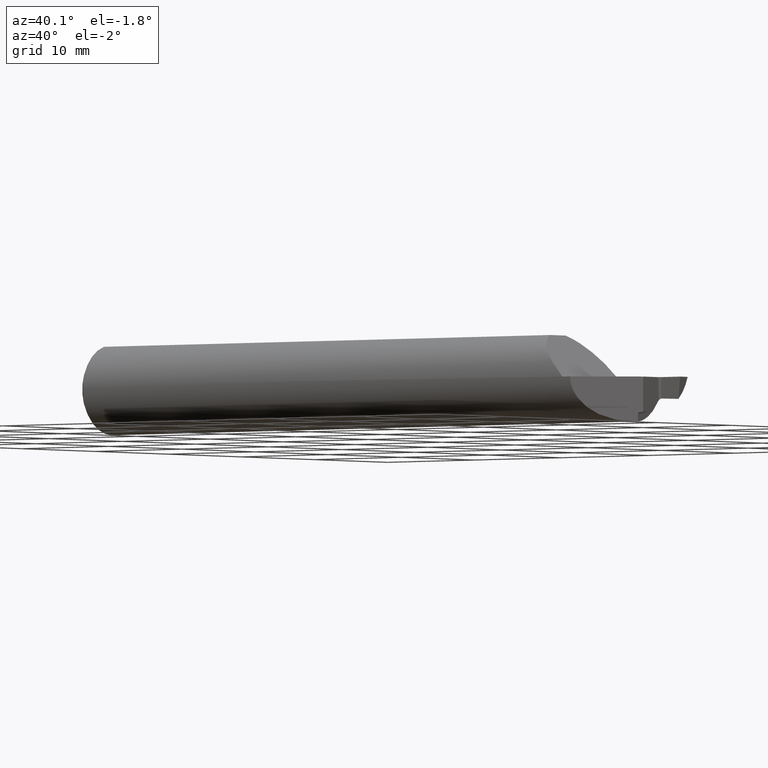
[diagram: clean part render]
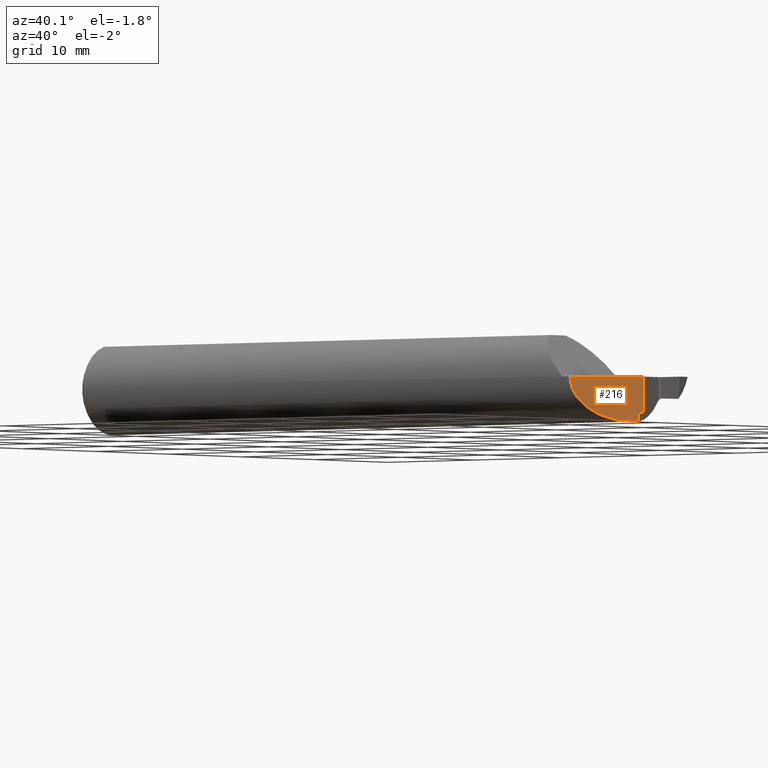
[diagram: same view with one face highlighted and labeled with its STEP entity id]
A machine part, auxiliary view. The second image highlights one B-rep face of the part: STEP entity #216.
In plain terms, the highlighted planar face has unit normal (-0.7071, 0.7071, 0).
Its self-contained STEP definition (entity closure, byte-faithful):
#3 = CARTESIAN_POINT ( 'NONE',  ( 2.405000000000000249, 0.02390000000000001845, 0.000000000000000000 ) ) ;
#11 = CARTESIAN_POINT ( 'NONE',  ( 2.405000000000000249, 0.02390000000000001845, -0.1560999999999999888 ) ) ;
#13 = LINE ( 'NONE', #579, #650 ) ;
#15 = CARTESIAN_POINT ( 'NONE',  ( 2.397423808061100114, 0.01632380806110001956, -0.1242544045886763149 ) ) ;
#19 = VECTOR ( 'NONE', #241, 39.37007874015748143 ) ;
#40 = ORIENTED_EDGE ( 'NONE', *, *, #162, .T. ) ;
#42 = ORIENTED_EDGE ( 'NONE', *, *, #692, .T. ) ;
#43 = CARTESIAN_POINT ( 'NONE',  ( 2.224999999999999645, -0.1560999999999999888, 0.000000000000000000 ) ) ;
#93 = EDGE_CURVE ( 'NONE', #606, #224, #378, .T. ) ;
#103 = CARTESIAN_POINT ( 'NONE',  ( 2.393284134125179818, 0.01218413412517886131, -0.1266357782406275778 ) ) ;
#110 = CARTESIAN_POINT ( 'NONE',  ( 2.399956862387794487, 0.01885686238779464216, -0.1240053609185062800 ) ) ;
#129 = DIRECTION ( 'NONE',  ( -0.000000000000000000, -0.000000000000000000, 1.000000000000000000 ) ) ;
#136 = CARTESIAN_POINT ( 'NONE',  ( 2.392508837550267220, 0.01140883755026705221, -0.1296700073607929826 ) ) ;
#142 = DIRECTION ( 'NONE',  ( 0.000000000000000000, 0.000000000000000000, -1.000000000000000000 ) ) ;
#148 = DIRECTION ( 'NONE',  ( -0.7071067811865486830, -0.7071067811865463515, 0.000000000000000000 ) ) ;
#155 = EDGE_CURVE ( 'NONE', #627, #796, #336, .T. ) ;
#162 = EDGE_CURVE ( 'NONE', #812, #606, #13, .T. ) ;
#186 = CARTESIAN_POINT ( 'NONE',  ( 2.405000000000000249, 0.02390000000000001845, -0.1233210395421390215 ) ) ;
#216 = ADVANCED_FACE ( 'NONE', ( #647 ), #453, .F. ) ;
#224 = VERTEX_POINT ( 'NONE', #457 ) ;
#227 = ORIENTED_EDGE ( 'NONE', *, *, #814, .T. ) ;
#233 = AXIS2_PLACEMENT_3D ( 'NONE', #11, #720, #148 ) ;
#241 = DIRECTION ( 'NONE',  ( -0.7071067811865486830, -0.7071067811865464625, 0.000000000000000000 ) ) ;
#243 = CARTESIAN_POINT ( 'NONE',  ( 2.397423808061100114, 0.01632380806110001956, -0.1242544045886763149 ) ) ;
#277 = CARTESIAN_POINT ( 'NONE',  ( 2.397423808061100114, 0.01632380806110001956, -0.1242544045886763149 ) ) ;
#336 = LINE ( 'NONE', #643, #560 ) ;
#349 = ORIENTED_EDGE ( 'NONE', *, *, #155, .F. ) ;
#361 = CARTESIAN_POINT ( 'NONE',  ( 2.295931644576337138, -0.08516835542366303635, -0.1627599630562642785 ) ) ;
#378 = LINE ( 'NONE', #639, #19 ) ;
#390 = EDGE_CURVE ( 'NONE', #796, #224, #516, .T. ) ;
#422 = CARTESIAN_POINT ( 'NONE',  ( 2.392508837550267220, 0.01140883755026705221, -0.1556825244712829459 ) ) ;
#447 = CARTESIAN_POINT ( 'NONE',  ( 2.402482786173128826, 0.02138278617312873442, -0.1236941743764464335 ) ) ;
#453 = PLANE ( 'NONE',  #233 ) ;
#457 = CARTESIAN_POINT ( 'NONE',  ( 2.224999999999999645, -0.1560999999999999888, 0.000000000000000000 ) ) ;
#494 = CARTESIAN_POINT ( 'NONE',  ( 2.392508837550267220, 0.01140883755026705221, -0.1296700073607929826 ) ) ;
#495 = ORIENTED_EDGE ( 'NONE', *, *, #390, .F. ) ;
#507 = ORIENTED_EDGE ( 'NONE', *, *, #93, .T. ) ;
#516 =( BOUNDED_CURVE ( )  B_SPLINE_CURVE ( 3, ( #620, #361, #677, #43 ),
 .UNSPECIFIED., .F., .T. ) 
 B_SPLINE_CURVE_WITH_KNOTS ( ( 4, 4 ),
 ( 4.639237032386853699, 6.283185307179586232 ),
 .UNSPECIFIED. ) 
 CURVE ( )  GEOMETRIC_REPRESENTATION_ITEM ( )  RATIONAL_B_SPLINE_CURVE ( ( 1.000000000000000000, 0.7871843310122479398, 0.7871843310122479398, 1.000000000000000000 ) ) 
 REPRESENTATION_ITEM ( '' )  );
#560 = VECTOR ( 'NONE', #142, 39.37007874015748143 ) ;
#579 = CARTESIAN_POINT ( 'NONE',  ( 2.405000000000000249, 0.02390000000000001845, -0.1560999999999999888 ) ) ;
#604 =( BOUNDED_CURVE ( )  B_SPLINE_CURVE ( 3, ( #243, #110, #447, #186 ),
 .UNSPECIFIED., .F., .F. ) 
 B_SPLINE_CURVE_WITH_KNOTS ( ( 4, 4 ),
 ( 1.670543601574468795, 1.720556221768346550 ),
 .UNSPECIFIED. ) 
 CURVE ( )  GEOMETRIC_REPRESENTATION_ITEM ( )  RATIONAL_B_SPLINE_CURVE ( ( 1.000000000000000000, 0.9997915723465391480, 0.9997915723465391480, 1.000000000000000000 ) ) 
 REPRESENTATION_ITEM ( '' )  );
#606 = VERTEX_POINT ( 'NONE', #3 ) ;
#618 = CARTESIAN_POINT ( 'NONE',  ( 2.396287397230223437, 0.01518739723022257890, -0.1243661337060088246 ) ) ;
#620 = CARTESIAN_POINT ( 'NONE',  ( 2.392508837550267220, 0.01140883755026705221, -0.1556825244712829459 ) ) ;
#627 = VERTEX_POINT ( 'NONE', #136 ) ;
#639 = CARTESIAN_POINT ( 'NONE',  ( 2.405000000000000249, 0.02390000000000001845, 0.000000000000000000 ) ) ;
#643 = CARTESIAN_POINT ( 'NONE',  ( 2.392508837550267220, 0.01140883755026705221, 0.02500000000000001180 ) ) ;
#647 = FACE_OUTER_BOUND ( 'NONE', #670, .T. ) ;
#650 = VECTOR ( 'NONE', #129, 39.37007874015748143 ) ;
#670 = EDGE_LOOP ( 'NONE', ( #495, #349, #42, #227, #40, #507 ) ) ;
#677 = CARTESIAN_POINT ( 'NONE',  ( 2.224999999999999645, -0.1560999999999999888, -0.09683617268174071757 ) ) ;
#679 = CARTESIAN_POINT ( 'NONE',  ( 2.395178092438971618, 0.01407809243897184710, -0.1248388976385393229 ) ) ;
#692 = EDGE_CURVE ( 'NONE', #627, #705, #703, .T. ) ;
#703 = B_SPLINE_CURVE_WITH_KNOTS ( 'NONE', 3,
 ( #494, #783, #103, #679, #618, #15 ),
 .UNSPECIFIED., .F., .F.,
 ( 4, 2, 4 ),
 ( 0.000000000000000000, 0.0001216767558260062798, 0.0002433535116520125596 ),
 .UNSPECIFIED. ) ;
#705 = VERTEX_POINT ( 'NONE', #277 ) ;
#720 = DIRECTION ( 'NONE',  ( -0.7071067811865463515, 0.7071067811865486830, 0.000000000000000000 ) ) ;
#750 = CARTESIAN_POINT ( 'NONE',  ( 2.405000000000000249, 0.02390000000000001845, -0.1233210395421390215 ) ) ;
#783 = CARTESIAN_POINT ( 'NONE',  ( 2.392508837550266776, 0.01140883755026705221, -0.1280443648796769918 ) ) ;
#796 = VERTEX_POINT ( 'NONE', #422 ) ;
#812 = VERTEX_POINT ( 'NONE', #750 ) ;
#814 = EDGE_CURVE ( 'NONE', #705, #812, #604, .T. ) ;